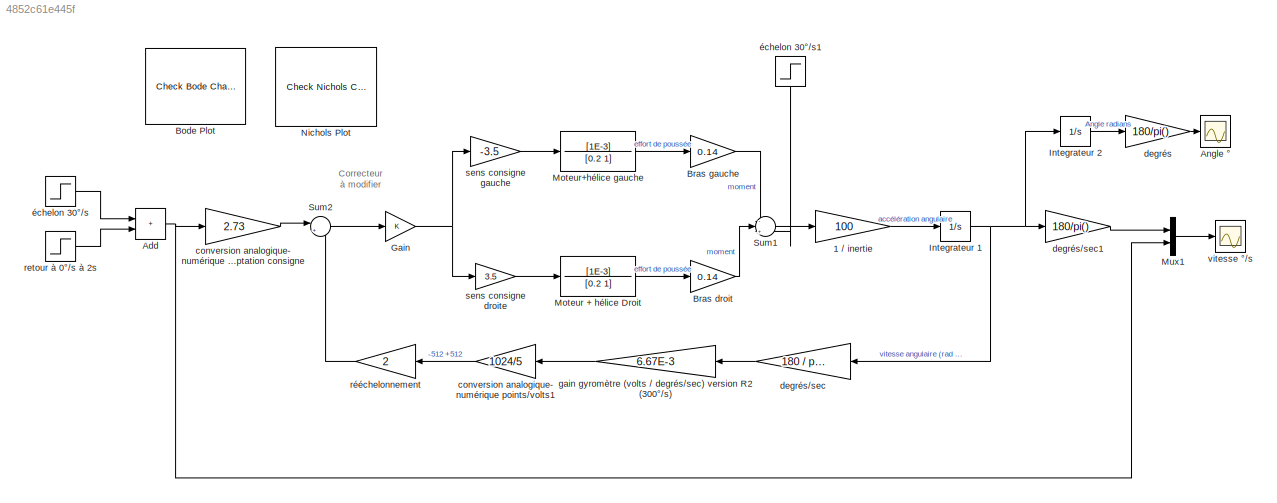
MODEL slx_4852c61e445f
KIND model
CONFIG AbsTol = auto
CONFIG EnableMultiTasking = on
CONFIG FixedStep = 0.001
CONFIG MaxStep = auto
CONFIG MinStep = auto
CONFIG RelTol = 1e-3
CONFIG SampleTimeConstraint = Unconstrained
CONFIG Solver = FixedStepAuto
CONFIG SolverName = FixedStepAuto
CONFIG StartTime = 0.0
CONFIG StopTime = 10
BLOCK [Gain] 1 // inertie
  Gain = 100
BLOCK [Sum] Add
  IconShape = rectangular
  Ports = [2, 1]
BLOCK [Scope] Angle °
  Floating = off
  NumInputPorts = 1
  Ports = [1]
  ScopeSpecificationString = Simulink.scopes.TimeScopeBlockCfg('CurrentConfiguration', extmgr.ConfigurationSet(extmgr.Configuration('Core','General UI',true),extmgr.Configuration('Core','Source UI',true),extmgr.Configuration('Sources','WiredSimulink',true,'DataLoggingSaveFormat','StructureWithTime','DataLoggingDecimation','1','DataLoggingDecimateData',true),extmgr.Configuration('Visuals','Time Domain',true,'SerializedDisplays...<+1557ch>
BLOCK [Reference] Bode Plot  REF=slctrlblks/Model Verification/Check Bode 
Characteristics
  InstantiateOnLoad = on
  Ports = []
  SourceBlock = slctrlblks/Model Verification/Check Bode \nCharacteristics
  SourceProductBaseCode = SD
  SourceType = Checks_Bode
BLOCK [Gain] Bras droit
  Gain = 0.14
BLOCK [Gain] Bras gauche
  Gain = 0.14
BLOCK [Gain] Gain
BLOCK [Integrator] Integrateur 1
  Ports = [1, 1]
BLOCK [Integrator] Integrateur 2
  Ports = [1, 1]
BLOCK [TransferFcn] Moteur + hélice Droit
  Denominator = [0.2 1]
  Numerator = [1E-3]
BLOCK [TransferFcn] Moteur+hélice gauche
  Denominator = [0.2 1]
  Numerator = [1E-3]
BLOCK [Mux] Mux1
  DisplayOption = bar
  Inputs = 2
  Ports = [2, 1]
BLOCK [Reference] Nichols Plot  REF=slctrlblks/Model Verification/Check Nichols
Characteristics
  InstantiateOnLoad = on
  Ports = []
  SourceBlock = slctrlblks/Model Verification/Check Nichols\nCharacteristics
  SourceProductBaseCode = SD
  SourceType = Checks_Nichols
BLOCK [Sum] Sum1
  Inputs = -|++
  Ports = [3, 1]
BLOCK [Sum] Sum2
  Inputs = |+-
  Ports = [2, 1]
BLOCK [Gain] conversion analogique- numérique points//volts 15 bits et adaptation consigne
  Gain = 2.73
BLOCK [Gain] conversion analogique- numérique points//volts1
  Gain = 1024/5
BLOCK [Gain] degrés
  Gain = 180/pi()
BLOCK [Gain] degrés//sec
  Gain = 180 / pi()
BLOCK [Gain] degrés//sec1
  Gain = 180/pi()
BLOCK [Gain] gain gyromètre (volts // degrés//sec) version R2 (300°//s)
  Gain = 6.67E-3
BLOCK [Step] retour à 0°//s à 2s
  After = -30
  SampleTime = 0
  Time = 2
BLOCK [Gain] rééchelonnement
  Gain = 2
BLOCK [Gain] sens consigne droite
  Gain = 3.5
BLOCK [Gain] sens consigne gauche
  Gain = -3.5
BLOCK [Scope] vitesse °//s
  Floating = off
  NumInputPorts = 1
  Ports = [1]
  ScopeSpecificationString = Simulink.scopes.TimeScopeBlockCfg('CurrentConfiguration', extmgr.ConfigurationSet(extmgr.Configuration('Core','General UI',true,'FigureColor',[1 1 1]),extmgr.Configuration('Core','Source UI',true),extmgr.Configuration('Sources','WiredSimulink',true,'DataLoggingVariableName','ScopeData4','DataLoggingSaveFormat','StructureWithTime','DataLoggingDecimation','1','DataLoggingDecimateData',true),extmgr.C...<+2176ch>
BLOCK [Step] échelon 30°//s
  After = 30
  SampleTime = 0
  Time = 0
BLOCK [Step] échelon 30°//s1
  After = 0.02
  SampleTime = 0
  Time = 6
ANNOTATION (root): Correcteur à modifier
LINE 1 // inertie:1 -> Integrateur 1:1
NET Add:1 -> Mux1:2, conversion analogique- numérique points//volts 15 bits et adaptation consigne:1
LINE Bras droit:1 -> Sum1:2
LINE Bras gauche:1 -> Sum1:1
NET Gain:1 -> sens consigne droite:1, sens consigne gauche:1
NET Integrateur 1:1 -> Integrateur 2:1, degrés//sec1:1, degrés//sec:1
LINE Integrateur 2:1 -> degrés:1
LINE Moteur + hélice Droit:1 -> Bras droit:1
LINE Moteur+hélice gauche:1 -> Bras gauche:1
LINE Mux1:1 -> vitesse °//s:1
LINE Sum1:1 -> 1 // inertie:1
LINE Sum2:1 -> Gain:1
LINE conversion analogique- numérique points//volts 15 bits et adaptation consigne:1 -> Sum2:1
LINE conversion analogique- numérique points//volts1:1 -> rééchelonnement:1
LINE degrés//sec1:1 -> Mux1:1
LINE degrés//sec:1 -> gain gyromètre (volts // degrés//sec) version R2 (300°//s):1
LINE degrés:1 -> Angle °:1
LINE gain gyromètre (volts // degrés//sec) version R2 (300°//s):1 -> conversion analogique- numérique points//volts1:1
LINE retour à 0°//s à 2s:1 -> Add:2
LINE rééchelonnement:1 -> Sum2:2
LINE sens consigne droite:1 -> Moteur + hélice Droit:1
LINE sens consigne gauche:1 -> Moteur+hélice gauche:1
LINE échelon 30°//s1:1 -> Sum1:3
LINE échelon 30°//s:1 -> Add:1
note: NET lines group one-source signal fan-out (src -> all destinations, sorted); 1:1 wires keep LINE
